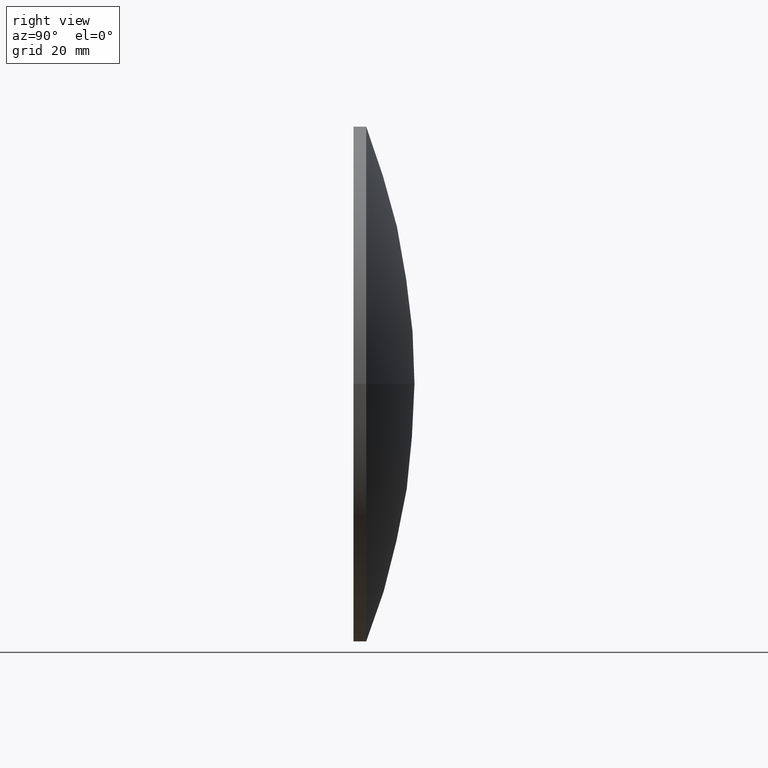
[diagram: clean part render]
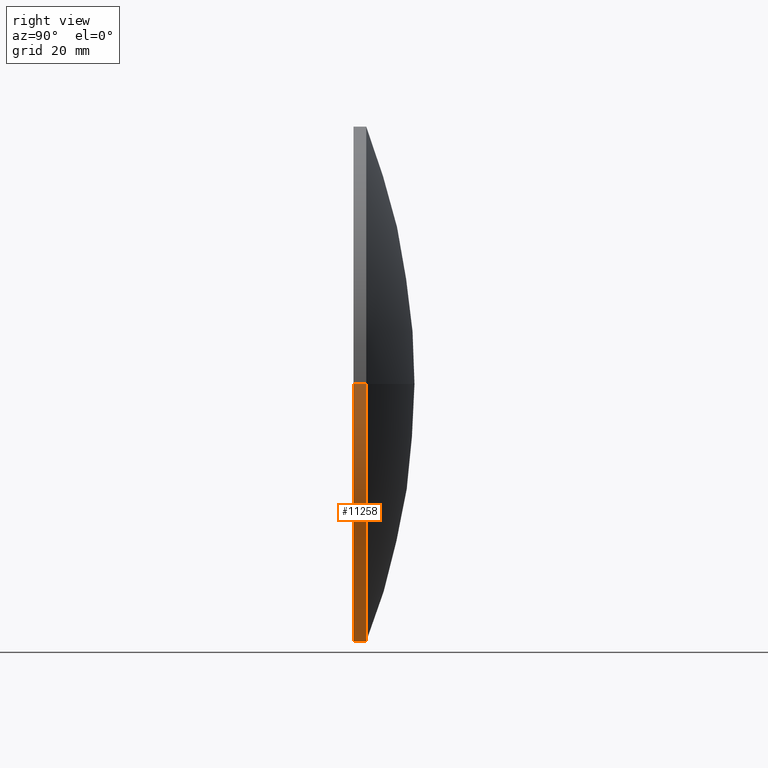
[diagram: same view with one face highlighted and labeled with its STEP entity id]
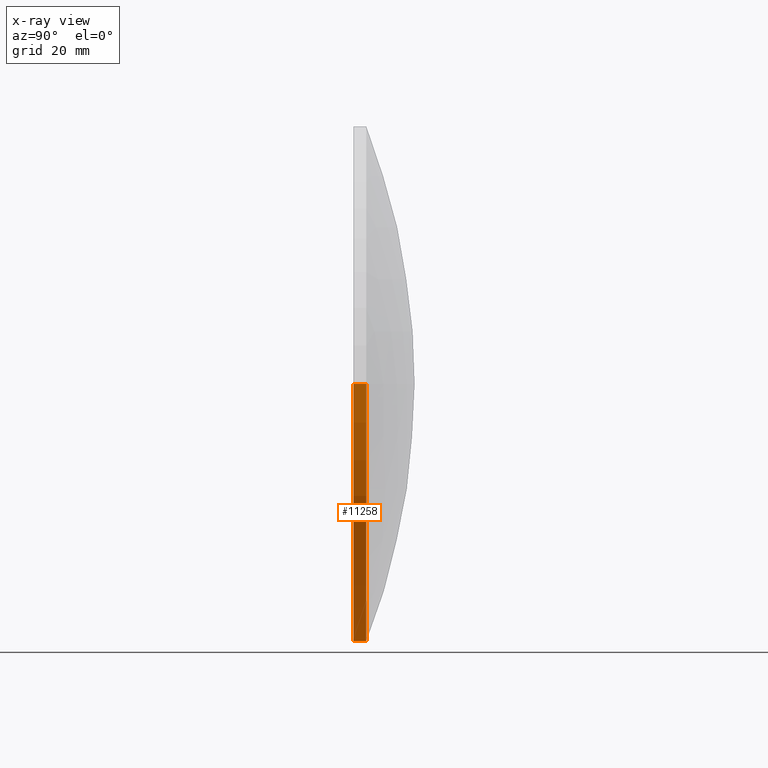
[diagram: x-ray of the same camera — body ghosted, the highlighted face saturated]
A machine part, right view. The second image highlights one B-rep face of the part: STEP entity #11258.
The next image is the same camera in x-ray: the body ghosted, the highlighted face saturated — about 0% of this face is hidden behind the body in this view.
In plain terms, the highlighted cylindrical surface (partial cylindrical patch) has radius 50.8 mm, axis along (-0, -1, -0).
Its self-contained STEP definition (entity closure, byte-faithful):
#111 = DIRECTION ( 'NONE',  ( -1.284146586159413000E-014, -1.000000000000000000, -0.0000000000000000000 ) ) ;
#121 = VERTEX_POINT ( 'NONE', #3357 ) ;
#607 = CARTESIAN_POINT ( 'NONE',  ( 0.0000000000000000000, 9.500000000000008900, 0.0000000000000000000 ) ) ;
#1185 = VECTOR ( 'NONE', #4198, 1000.000000000000000 ) ;
#1230 = FACE_OUTER_BOUND ( 'NONE', #7501, .T. ) ;
#1355 = DIRECTION ( 'NONE',  ( -1.284146586159413000E-014, -1.000000000000000000, -0.0000000000000000000 ) ) ;
#1644 = AXIS2_PLACEMENT_3D ( 'NONE', #607, #1355, #8593 ) ;
#2094 = AXIS2_PLACEMENT_3D ( 'NONE', #6771, #8554, #7618 ) ;
#2923 = DIRECTION ( 'NONE',  ( 1.000000000000000000, -1.284146586159413000E-014, 0.0000000000000000000 ) ) ;
#3310 = AXIS2_PLACEMENT_3D ( 'NONE', #6377, #111, #2923 ) ;
#3342 = CIRCLE ( 'NONE', #2094, 50.80000000000009000 ) ;
#3357 = CARTESIAN_POINT ( 'NONE',  ( 50.80000000000000400, 1.644284674272805100E-015, 0.0000000000000000000 ) ) ;
#3375 = CARTESIAN_POINT ( 'NONE',  ( -50.80000000000025300, 1.306337216212239800E-012, 6.221205739668571900E-015 ) ) ;
#3451 = CARTESIAN_POINT ( 'NONE',  ( -50.80000000000011100, 9.500000000000660800, 6.221205739668567900E-015 ) ) ;
#4129 = VERTEX_POINT ( 'NONE', #5902 ) ;
#4198 = DIRECTION ( 'NONE',  ( -1.284146586159413000E-014, -1.000000000000000000, -0.0000000000000000000 ) ) ;
#4572 = ORIENTED_EDGE ( 'NONE', *, *, #10383, .F. ) ;
#5066 = ORIENTED_EDGE ( 'NONE', *, *, #10593, .F. ) ;
#5362 = EDGE_CURVE ( 'NONE', #11613, #121, #10420, .T. ) ;
#5902 = CARTESIAN_POINT ( 'NONE',  ( -50.80000000000018200, 2.500000000001279000, 6.221205739668566400E-015 ) ) ;
#5981 = VERTEX_POINT ( 'NONE', #3375 ) ;
#6377 = CARTESIAN_POINT ( 'NONE',  ( -1.219939256851359600E-013, 6.539907504432562700E-013, 0.0000000000000000000 ) ) ;
#6771 = CARTESIAN_POINT ( 'NONE',  ( -8.989026103115097500E-014, 2.500000000000626600, 0.0000000000000000000 ) ) ;
#7501 = EDGE_LOOP ( 'NONE', ( #4572, #9963, #8678, #5066 ) ) ;
#7618 = DIRECTION ( 'NONE',  ( 1.000000000000000000, -1.283968557022201400E-014, 0.0000000000000000000 ) ) ;
#7634 = VECTOR ( 'NONE', #11369, 1000.000000000000000 ) ;
#7807 = CYLINDRICAL_SURFACE ( 'NONE', #1644, 50.80000000000011100 ) ;
#8554 = DIRECTION ( 'NONE',  ( -1.284146586159413000E-014, -1.000000000000000000, -0.0000000000000000000 ) ) ;
#8593 = DIRECTION ( 'NONE',  ( 1.000000000000000000, -1.283968557022200900E-014, 0.0000000000000000000 ) ) ;
#8678 = ORIENTED_EDGE ( 'NONE', *, *, #5362, .T. ) ;
#8997 = CARTESIAN_POINT ( 'NONE',  ( 50.79999999999999700, 2.499999999999974200, 0.0000000000000000000 ) ) ;
#9963 = ORIENTED_EDGE ( 'NONE', *, *, #11267, .T. ) ;
#10180 = CARTESIAN_POINT ( 'NONE',  ( 50.80000000000011100, 9.499999999999357000, 0.0000000000000000000 ) ) ;
#10383 = EDGE_CURVE ( 'NONE', #4129, #5981, #11558, .T. ) ;
#10420 = LINE ( 'NONE', #10180, #1185 ) ;
#10593 = EDGE_CURVE ( 'NONE', #5981, #121, #10703, .T. ) ;
#10703 = CIRCLE ( 'NONE', #3310, 50.80000000000013200 ) ;
#11258 = ADVANCED_FACE ( 'NONE', ( #1230 ), #7807, .T. ) ;
#11267 = EDGE_CURVE ( 'NONE', #4129, #11613, #3342, .T. ) ;
#11369 = DIRECTION ( 'NONE',  ( -1.284146586159413000E-014, -1.000000000000000000, -0.0000000000000000000 ) ) ;
#11558 = LINE ( 'NONE', #3451, #7634 ) ;
#11613 = VERTEX_POINT ( 'NONE', #8997 ) ;